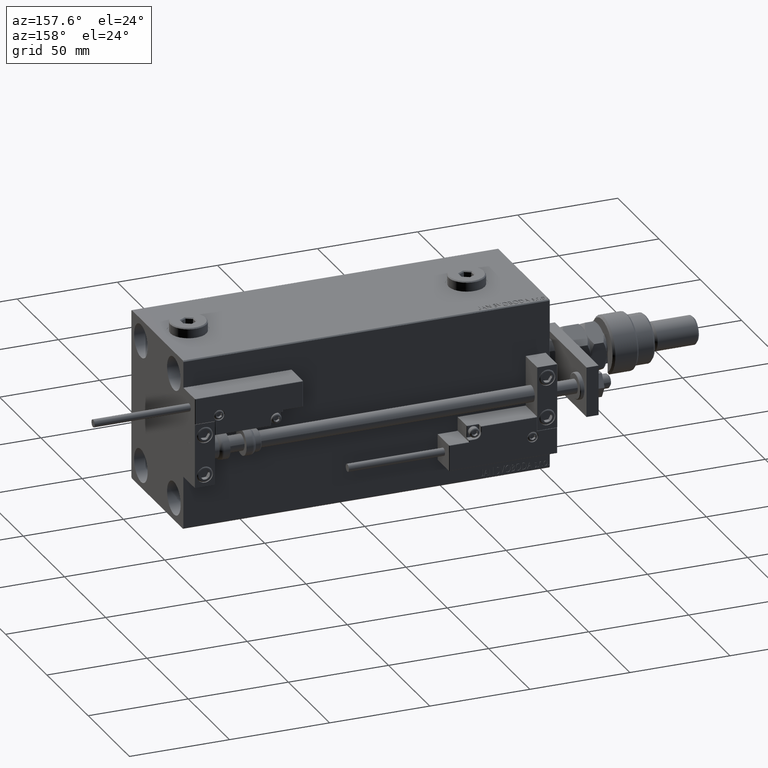
[diagram: clean part render]
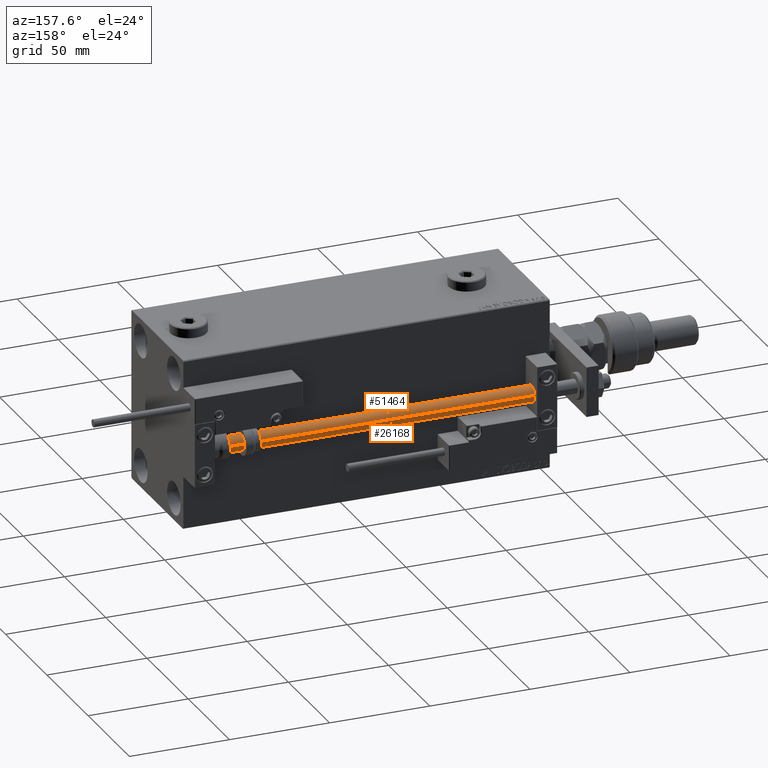
[diagram: same view with one multi-face feature highlighted, each face labeled with its STEP entity id]
A machine part, auxiliary view. The highlighted faces form ONE feature: a constant-radius fillet chain: 2 tangent blend faces with common blend radius 4 mm. The faces share edges in the B-rep.
Their STEP definitions:
[1] entity #26168 (Cylinder):
#152 = LINE ( 'NONE', #20485, #30163 ) ;
#1409 = EDGE_CURVE ( 'NONE', #15362, #26731, #7804, .T. ) ;
#1537 = EDGE_LOOP ( 'NONE', ( #19946, #45052, #5975, #22409 ) ) ;
#3560 = DIRECTION ( 'NONE',  ( -0.000000000000000000, -0.000000000000000000, -1.000000000000000000 ) ) ;
#5060 = VERTEX_POINT ( 'NONE', #28877 ) ;
#5975 = ORIENTED_EDGE ( 'NONE', *, *, #1409, .T. ) ;
#7694 = CARTESIAN_POINT ( 'NONE',  ( 0.000000000000000000, 0.000000000000000000, 183.0000000000000000 ) ) ;
#7804 = LINE ( 'NONE', #37209, #17689 ) ;
#10193 = EDGE_CURVE ( 'NONE', #15362, #5060, #16144, .T. ) ;
#14027 = EDGE_CURVE ( 'NONE', #5060, #40528, #152, .T. ) ;
#15362 = VERTEX_POINT ( 'NONE', #34964 ) ;
#16104 = CARTESIAN_POINT ( 'NONE',  ( 4.000000000000000000, 4.898587196589412829E-16, 2.000000000000029310 ) ) ;
#16144 = CIRCLE ( 'NONE', #38991, 4.000000000000000000 ) ;
#17689 = VECTOR ( 'NONE', #32816, 1000.000000000000000 ) ;
#19946 = ORIENTED_EDGE ( 'NONE', *, *, #14027, .F. ) ;
#20485 = CARTESIAN_POINT ( 'NONE',  ( 4.000000000000000000, 4.898587196589412829E-16, 183.0000000000000000 ) ) ;
#20747 = DIRECTION ( 'NONE',  ( -0.000000000000000000, -0.000000000000000000, -1.000000000000000000 ) ) ;
#20841 = FACE_OUTER_BOUND ( 'NONE', #1537, .T. ) ;
#20897 = CIRCLE ( 'NONE', #51649, 4.000000000000000000 ) ;
#22409 = ORIENTED_EDGE ( 'NONE', *, *, #28949, .T. ) ;
#26168 = ADVANCED_FACE ( 'NONE', ( #20841 ), #45590, .T. ) ;
#26731 = VERTEX_POINT ( 'NONE', #43836 ) ;
#27080 = DIRECTION ( 'NONE',  ( 1.000000000000000000, 0.000000000000000000, 0.000000000000000000 ) ) ;
#27861 = AXIS2_PLACEMENT_3D ( 'NONE', #7694, #3560, #32972 ) ;
#28877 = CARTESIAN_POINT ( 'NONE',  ( 4.000000000000000000, 4.898587196589412829E-16, 183.0000000000000000 ) ) ;
#28949 = EDGE_CURVE ( 'NONE', #26731, #40528, #20897, .T. ) ;
#30163 = VECTOR ( 'NONE', #20747, 1000.000000000000000 ) ;
#30939 = CARTESIAN_POINT ( 'NONE',  ( 0.000000000000000000, 0.000000000000000000, 2.000000000000029310 ) ) ;
#31211 = DIRECTION ( 'NONE',  ( 0.000000000000000000, 0.000000000000000000, 1.000000000000000000 ) ) ;
#32816 = DIRECTION ( 'NONE',  ( -0.000000000000000000, -0.000000000000000000, -1.000000000000000000 ) ) ;
#32972 = DIRECTION ( 'NONE',  ( -1.000000000000000000, 0.000000000000000000, 0.000000000000000000 ) ) ;
#34242 = DIRECTION ( 'NONE',  ( -0.000000000000000000, -0.000000000000000000, 1.000000000000000000 ) ) ;
#34964 = CARTESIAN_POINT ( 'NONE',  ( -4.000000000000000000, 0.000000000000000000, 183.0000000000000000 ) ) ;
#37209 = CARTESIAN_POINT ( 'NONE',  ( -4.000000000000000000, 0.000000000000000000, 183.0000000000000000 ) ) ;
#38991 = AXIS2_PLACEMENT_3D ( 'NONE', #43298, #31211, #27080 ) ;
#40528 = VERTEX_POINT ( 'NONE', #16104 ) ;
#43028 = DIRECTION ( 'NONE',  ( 1.000000000000000000, 0.000000000000000000, 0.000000000000000000 ) ) ;
#43298 = CARTESIAN_POINT ( 'NONE',  ( 0.000000000000000000, 0.000000000000000000, 183.0000000000000000 ) ) ;
#43836 = CARTESIAN_POINT ( 'NONE',  ( -4.000000000000000000, 0.000000000000000000, 2.000000000000029310 ) ) ;
#45052 = ORIENTED_EDGE ( 'NONE', *, *, #10193, .F. ) ;
#45590 = CYLINDRICAL_SURFACE ( 'NONE', #27861, 4.000000000000000000 ) ;
#51649 = AXIS2_PLACEMENT_3D ( 'NONE', #30939, #34242, #43028 ) ;
[2] entity #51464 (Cylinder):
#152 = LINE ( 'NONE', #20485, #30163 ) ;
#1409 = EDGE_CURVE ( 'NONE', #15362, #26731, #7804, .T. ) ;
#3967 = DIRECTION ( 'NONE',  ( -1.000000000000000000, 0.000000000000000000, 0.000000000000000000 ) ) ;
#4170 = EDGE_CURVE ( 'NONE', #5060, #15362, #25709, .T. ) ;
#4597 = EDGE_CURVE ( 'NONE', #40528, #26731, #47707, .T. ) ;
#5060 = VERTEX_POINT ( 'NONE', #28877 ) ;
#7804 = LINE ( 'NONE', #37209, #17689 ) ;
#12471 = CARTESIAN_POINT ( 'NONE',  ( 0.000000000000000000, 0.000000000000000000, 183.0000000000000000 ) ) ;
#14027 = EDGE_CURVE ( 'NONE', #5060, #40528, #152, .T. ) ;
#14039 = AXIS2_PLACEMENT_3D ( 'NONE', #12471, #41889, #3967 ) ;
#15362 = VERTEX_POINT ( 'NONE', #34964 ) ;
#16104 = CARTESIAN_POINT ( 'NONE',  ( 4.000000000000000000, 4.898587196589412829E-16, 2.000000000000029310 ) ) ;
#17689 = VECTOR ( 'NONE', #32816, 1000.000000000000000 ) ;
#19936 = ORIENTED_EDGE ( 'NONE', *, *, #14027, .T. ) ;
#20485 = CARTESIAN_POINT ( 'NONE',  ( 4.000000000000000000, 4.898587196589412829E-16, 183.0000000000000000 ) ) ;
#20747 = DIRECTION ( 'NONE',  ( -0.000000000000000000, -0.000000000000000000, -1.000000000000000000 ) ) ;
#21796 = FACE_OUTER_BOUND ( 'NONE', #34382, .T. ) ;
#22196 = AXIS2_PLACEMENT_3D ( 'NONE', #37298, #54346, #28522 ) ;
#25709 = CIRCLE ( 'NONE', #22196, 4.000000000000000000 ) ;
#26731 = VERTEX_POINT ( 'NONE', #43836 ) ;
#28522 = DIRECTION ( 'NONE',  ( 1.000000000000000000, 0.000000000000000000, 0.000000000000000000 ) ) ;
#28877 = CARTESIAN_POINT ( 'NONE',  ( 4.000000000000000000, 4.898587196589412829E-16, 183.0000000000000000 ) ) ;
#29542 = CYLINDRICAL_SURFACE ( 'NONE', #14039, 4.000000000000000000 ) ;
#29844 = ORIENTED_EDGE ( 'NONE', *, *, #4597, .T. ) ;
#30163 = VECTOR ( 'NONE', #20747, 1000.000000000000000 ) ;
#30886 = CARTESIAN_POINT ( 'NONE',  ( 0.000000000000000000, 0.000000000000000000, 2.000000000000029310 ) ) ;
#31916 = ORIENTED_EDGE ( 'NONE', *, *, #1409, .F. ) ;
#32816 = DIRECTION ( 'NONE',  ( -0.000000000000000000, -0.000000000000000000, -1.000000000000000000 ) ) ;
#34382 = EDGE_LOOP ( 'NONE', ( #45756, #19936, #29844, #31916 ) ) ;
#34964 = CARTESIAN_POINT ( 'NONE',  ( -4.000000000000000000, 0.000000000000000000, 183.0000000000000000 ) ) ;
#37209 = CARTESIAN_POINT ( 'NONE',  ( -4.000000000000000000, 0.000000000000000000, 183.0000000000000000 ) ) ;
#37298 = CARTESIAN_POINT ( 'NONE',  ( 0.000000000000000000, 0.000000000000000000, 183.0000000000000000 ) ) ;
#40528 = VERTEX_POINT ( 'NONE', #16104 ) ;
#41889 = DIRECTION ( 'NONE',  ( -0.000000000000000000, -0.000000000000000000, -1.000000000000000000 ) ) ;
#43836 = CARTESIAN_POINT ( 'NONE',  ( -4.000000000000000000, 0.000000000000000000, 2.000000000000029310 ) ) ;
#45756 = ORIENTED_EDGE ( 'NONE', *, *, #4170, .F. ) ;
#46547 = DIRECTION ( 'NONE',  ( -0.000000000000000000, -0.000000000000000000, 1.000000000000000000 ) ) ;
#47091 = DIRECTION ( 'NONE',  ( 1.000000000000000000, 0.000000000000000000, 0.000000000000000000 ) ) ;
#47707 = CIRCLE ( 'NONE', #53854, 4.000000000000000000 ) ;
#51464 = ADVANCED_FACE ( 'NONE', ( #21796 ), #29542, .T. ) ;
#53854 = AXIS2_PLACEMENT_3D ( 'NONE', #30886, #46547, #47091 ) ;
#54346 = DIRECTION ( 'NONE',  ( 0.000000000000000000, 0.000000000000000000, 1.000000000000000000 ) ) ;